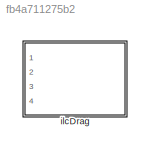
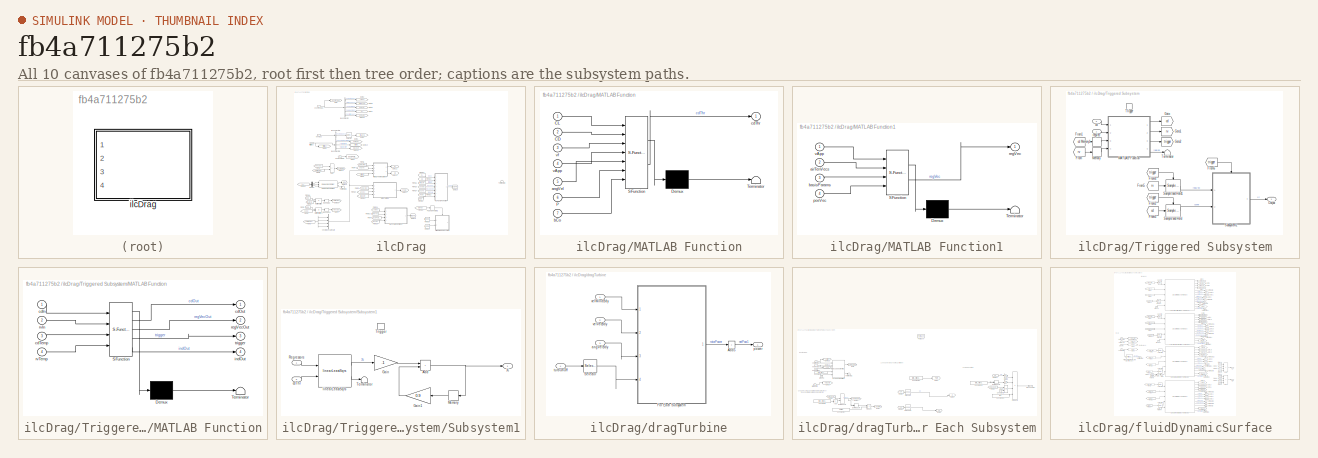
[diagram: thumbnail index - all 10 canvases of the model, root first then tree order]
MODEL slx_fb4a711275b2
KIND library
CONFIG AbsTol = auto
CONFIG EnableMultiTasking = off
CONFIG FixedStep = auto
CONFIG MaxStep = auto
CONFIG MinStep = auto
CONFIG RelTol = 1e-3
CONFIG SampleTimeConstraint = Unconstrained
CONFIG SolverName = VariableStepAuto
CONFIG StartTime = 0.0
CONFIG StopTime = 10.0
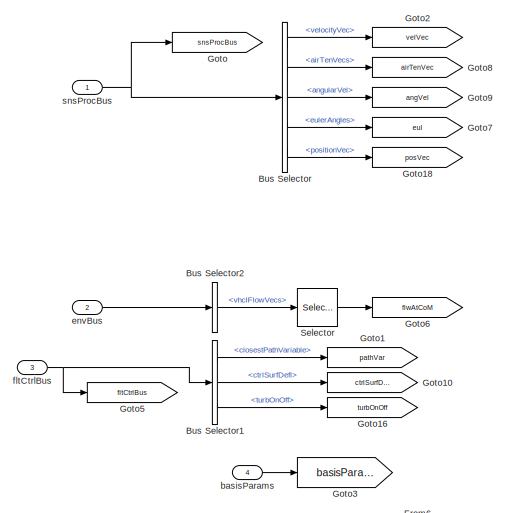
[diagram: ilcDrag - part 1/3, top left region]
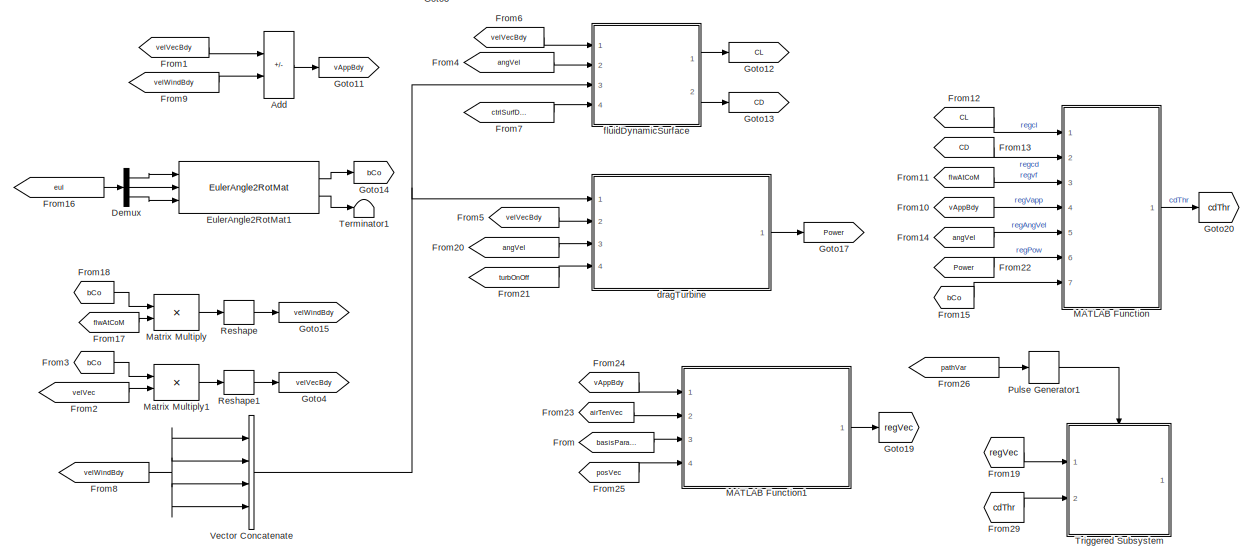
[diagram: ilcDrag - part 2/3, full width, bottom band]
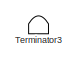
[diagram: ilcDrag - part 3/3, middle right region]
BLOCK [SubSystem] ilcDrag
  MinAlgLoopOccurrences = on
  Ports = [4]
  RequestExecContextInheritance = off
BLOCK [Sum] ilcDrag/Add
  IconShape = rectangular
  Inputs = -+
  Ports = [2, 1]
BLOCK [BusSelector] ilcDrag/Bus Selector
  OutputSignals = velocityVec,airTenVecs,angularVel,eulerAngles,positionVec
  Ports = [1, 5]
BLOCK [BusSelector] ilcDrag/Bus Selector1
  OutputSignals = closestPathVariable,ctrlSurfDefl,turbOnOff
  Ports = [1, 3]
BLOCK [BusSelector] ilcDrag/Bus Selector2
  OutputSignals = vhclFlowVecs
  Ports = [1, 1]
BLOCK [Demux] ilcDrag/Demux
  Outputs = 3
  Ports = [1, 3]
BLOCK [Reference] ilcDrag/EulerAngle2RotMat1  REF=eulAng2RotMat_ul/EulerAngle2RotMat
  Ports = [3, 2]
  SourceBlock = eulAng2RotMat_ul/EulerAngle2RotMat
  SourceType = SubSystem
BLOCK [From] ilcDrag/From
  GotoTag = basisParams
BLOCK [From] ilcDrag/From1
  GotoTag = velVecBdy
BLOCK [From] ilcDrag/From10
  GotoTag = vAppBdy
BLOCK [From] ilcDrag/From11
  GotoTag = flwAtCoM
BLOCK [From] ilcDrag/From12
  GotoTag = CL
BLOCK [From] ilcDrag/From13
  GotoTag = CD
BLOCK [From] ilcDrag/From14
  GotoTag = angVel
BLOCK [From] ilcDrag/From15
  GotoTag = bCo
BLOCK [From] ilcDrag/From16
  GotoTag = eul
BLOCK [From] ilcDrag/From17
  GotoTag = flwAtCoM
BLOCK [From] ilcDrag/From18
  GotoTag = bCo
BLOCK [From] ilcDrag/From19
  GotoTag = regVec
BLOCK [From] ilcDrag/From2
  GotoTag = velVec
BLOCK [From] ilcDrag/From20
  GotoTag = angVel
BLOCK [From] ilcDrag/From21
  GotoTag = turbOnOff
BLOCK [From] ilcDrag/From22
  GotoTag = Power
BLOCK [From] ilcDrag/From23
  GotoTag = airTenVec
BLOCK [From] ilcDrag/From24
  GotoTag = vAppBdy
BLOCK [From] ilcDrag/From25
  GotoTag = posVec
BLOCK [From] ilcDrag/From26
  GotoTag = pathVar
BLOCK [From] ilcDrag/From29
  GotoTag = cdThr
BLOCK [From] ilcDrag/From3
  GotoTag = bCo
BLOCK [From] ilcDrag/From4
  GotoTag = angVel
BLOCK [From] ilcDrag/From5
  GotoTag = velVecBdy
BLOCK [From] ilcDrag/From6
  GotoTag = velVecBdy
BLOCK [From] ilcDrag/From7
  GotoTag = ctrlSurfDefl
BLOCK [From] ilcDrag/From8
  GotoTag = velWindBdy
BLOCK [From] ilcDrag/From9
  GotoTag = velWindBdy
BLOCK [Goto] ilcDrag/Goto
  GotoTag = snsProcBus
BLOCK [Goto] ilcDrag/Goto1
  GotoTag = pathVar
BLOCK [Goto] ilcDrag/Goto10
  GotoTag = ctrlSurfDefl
BLOCK [Goto] ilcDrag/Goto11
  GotoTag = vAppBdy
BLOCK [Goto] ilcDrag/Goto12
  GotoTag = CL
BLOCK [Goto] ilcDrag/Goto13
  GotoTag = CD
BLOCK [Goto] ilcDrag/Goto14
  GotoTag = bCo
BLOCK [Goto] ilcDrag/Goto15
  GotoTag = velWindBdy
BLOCK [Goto] ilcDrag/Goto16
  GotoTag = turbOnOff
BLOCK [Goto] ilcDrag/Goto17
  GotoTag = Power
BLOCK [Goto] ilcDrag/Goto18
  GotoTag = posVec
BLOCK [Goto] ilcDrag/Goto19
  GotoTag = regVec
BLOCK [Goto] ilcDrag/Goto2
  GotoTag = velVec
BLOCK [Goto] ilcDrag/Goto20
  GotoTag = cdThr
BLOCK [Goto] ilcDrag/Goto3
  GotoTag = basisParams
BLOCK [Goto] ilcDrag/Goto4
  GotoTag = velVecBdy
BLOCK [Goto] ilcDrag/Goto5
  GotoTag = fltCtrlBus
BLOCK [Goto] ilcDrag/Goto6
  GotoTag = flwAtCoM
BLOCK [Goto] ilcDrag/Goto7
  GotoTag = eul
BLOCK [Goto] ilcDrag/Goto8
  GotoTag = airTenVec
BLOCK [Goto] ilcDrag/Goto9
  GotoTag = angVel
BLOCK [SubSystem] ilcDrag/MATLAB Function
  ErrorFcn = Stateflow.Translate.translate
  PermitHierarchicalResolution = ExplicitOnly
  Ports = [7, 1]
  RequestExecContextInheritance = off
  SFBlockType = MATLAB Function
  TreatAsAtomicUnit = on
BLOCK [Demux] ilcDrag/MATLAB Function/ Demux 
  Outputs = 1
  Ports = [1, 1]
BLOCK [S-Function] ilcDrag/MATLAB Function/ SFunction 
  EnableBusSupport = off
  FunctionName = sf_sfun
  PortCounts = [7 2]
  Ports = [7, 2]
  SFcnIsStateOwnerBlock = off
  SFunctionDeploymentMode = off
  Tag = Stateflow S-Function 2
BLOCK [Terminator] ilcDrag/MATLAB Function/ Terminator 
BLOCK [Inport] ilcDrag/MATLAB Function/CD
  Port = 2
BLOCK [Inport] ilcDrag/MATLAB Function/CL
BLOCK [Inport] ilcDrag/MATLAB Function/P
  Port = 6
BLOCK [Inport] ilcDrag/MATLAB Function/angVel
  Port = 5
BLOCK [Inport] ilcDrag/MATLAB Function/bCo
  Port = 7
BLOCK [Outport] ilcDrag/MATLAB Function/cdThr
BLOCK [Inport] ilcDrag/MATLAB Function/vApp
  Port = 4
BLOCK [Inport] ilcDrag/MATLAB Function/vf
  Port = 3
BLOCK [SubSystem] ilcDrag/MATLAB Function1
  ErrorFcn = Stateflow.Translate.translate
  PermitHierarchicalResolution = ExplicitOnly
  Ports = [4, 1]
  RequestExecContextInheritance = off
  SFBlockType = MATLAB Function
  TreatAsAtomicUnit = on
BLOCK [Demux] ilcDrag/MATLAB Function1/ Demux 
  Outputs = 1
  Ports = [1, 1]
BLOCK [S-Function] ilcDrag/MATLAB Function1/ SFunction 
  EnableBusSupport = off
  FunctionName = sf_sfun
  PortCounts = [4 2]
  Ports = [4, 2]
  SFcnIsStateOwnerBlock = off
  SFunctionDeploymentMode = off
  Tag = Stateflow S-Function 1
BLOCK [Terminator] ilcDrag/MATLAB Function1/ Terminator 
BLOCK [Inport] ilcDrag/MATLAB Function1/airTenVecs
  Port = 2
BLOCK [Inport] ilcDrag/MATLAB Function1/basisParams
  Port = 3
BLOCK [Inport] ilcDrag/MATLAB Function1/posVec
  Port = 4
BLOCK [Outport] ilcDrag/MATLAB Function1/regVec
BLOCK [Inport] ilcDrag/MATLAB Function1/vApp
BLOCK [Product] ilcDrag/Matrix Multiply
  Multiplication = Matrix(*)
  Ports = [2, 1]
BLOCK [Product] ilcDrag/Matrix Multiply1
  Multiplication = Matrix(*)
  Ports = [2, 1]
BLOCK [DiscretePulseGenerator] ilcDrag/Pulse Generator1
  Period = 0.002
  Ports = [1, 1]
  PulseType = Time based
  PulseWidth = 50
  TimeSource = Use external signal
BLOCK [Reshape] ilcDrag/Reshape
  OutputDimensionality = Column vector (2-D)
  Ports = [1, 1]
BLOCK [Reshape] ilcDrag/Reshape1
  OutputDimensionality = Column vector (2-D)
  Ports = [1, 1]
BLOCK [Selector] ilcDrag/Selector
  IndexOptions = Select all,Index vector (dialog)
  Indices = [1 3],5
  InputPortWidth = 3
  NumberOfDimensions = 2
  OutputSizes = 1,1
  Ports = [1, 1]
BLOCK [Terminator] ilcDrag/Terminator1
BLOCK [Terminator] ilcDrag/Terminator3
BLOCK [SubSystem] ilcDrag/Triggered Subsystem
  Ports = [2, 1, 0, 1]
  RequestExecContextInheritance = off
  TreatAsAtomicUnit = on
BLOCK [From] ilcDrag/Triggered Subsystem/From
  GotoTag = rv
BLOCK [From] ilcDrag/Triggered Subsystem/From1
  GotoTag = cd
BLOCK [From] ilcDrag/Triggered Subsystem/From2
  GotoTag = trigger
BLOCK [From] ilcDrag/Triggered Subsystem/From3
  GotoTag = cd
BLOCK [From] ilcDrag/Triggered Subsystem/From4
  GotoTag = trigger
BLOCK [From] ilcDrag/Triggered Subsystem/From5
  GotoTag = rv
BLOCK [From] ilcDrag/Triggered Subsystem/From6
  GotoTag = trigger
BLOCK [Goto] ilcDrag/Triggered Subsystem/Goto
  GotoTag = cd
BLOCK [Goto] ilcDrag/Triggered Subsystem/Goto1
  GotoTag = rv
BLOCK [Goto] ilcDrag/Triggered Subsystem/Goto2
  GotoTag = trigger
BLOCK [SubSystem] ilcDrag/Triggered Subsystem/MATLAB Function
  ErrorFcn = Stateflow.Translate.translate
  PermitHierarchicalResolution = ExplicitOnly
  Ports = [4, 4]
  RequestExecContextInheritance = off
  SFBlockType = MATLAB Function
  TreatAsAtomicUnit = on
BLOCK [Demux] ilcDrag/Triggered Subsystem/MATLAB Function/ Demux 
  Outputs = 1
  Ports = [1, 1]
BLOCK [S-Function] ilcDrag/Triggered Subsystem/MATLAB Function/ SFunction 
  EnableBusSupport = off
  FunctionName = sf_sfun
  PortCounts = [4 5]
  Ports = [4, 5]
  SFcnIsStateOwnerBlock = off
  SFunctionDeploymentMode = off
  Tag = Stateflow S-Function 3
BLOCK [Terminator] ilcDrag/Triggered Subsystem/MATLAB Function/ Terminator 
BLOCK [Inport] ilcDrag/Triggered Subsystem/MATLAB Function/cdIn
BLOCK [Outport] ilcDrag/Triggered Subsystem/MATLAB Function/cdOut
BLOCK [Inport] ilcDrag/Triggered Subsystem/MATLAB Function/cdTemp
  Port = 3
BLOCK [Outport] ilcDrag/Triggered Subsystem/MATLAB Function/indOut
  Port = 4
BLOCK [Outport] ilcDrag/Triggered Subsystem/MATLAB Function/regVecOut
  Port = 2
BLOCK [Inport] ilcDrag/Triggered Subsystem/MATLAB Function/rvIn
  Port = 2
BLOCK [Inport] ilcDrag/Triggered Subsystem/MATLAB Function/rvTemp
  Port = 4
BLOCK [Outport] ilcDrag/Triggered Subsystem/MATLAB Function/trigger
  Port = 3
BLOCK [Memory] ilcDrag/Triggered Subsystem/Memory
  InheritSampleTime = on
  InitialCondition = zeros(500,10)
BLOCK [Memory] ilcDrag/Triggered Subsystem/Memory1
  InheritSampleTime = on
  InitialCondition = zeros(500,1)
BLOCK [Outport] ilcDrag/Triggered Subsystem/Output
BLOCK [Reference] ilcDrag/Triggered Subsystem/Sample and Hold  REF=dspsigops/Sample
and Hold
  Ports = [1, 1, 0, 1]
  SourceBlock = dspsigops/Sample\nand Hold
  SourceProductBaseCode = DS
  SourceType = Sample and Hold
BLOCK [Reference] ilcDrag/Triggered Subsystem/Sample and Hold1  REF=dspsigops/Sample
and Hold
  Ports = [1, 1, 0, 1]
  SourceBlock = dspsigops/Sample\nand Hold
  SourceProductBaseCode = DS
  SourceType = Sample and Hold
BLOCK [SubSystem] ilcDrag/Triggered Subsystem/Subsystem1
  Ports = [2, 1, 0, 1]
  RequestExecContextInheritance = off
BLOCK [Sum] ilcDrag/Triggered Subsystem/Subsystem1/Add
  IconShape = rectangular
  Ports = [2, 1]
BLOCK [Gain] ilcDrag/Triggered Subsystem/Subsystem1/Gain
  Gain = .1
BLOCK [Gain] ilcDrag/Triggered Subsystem/Subsystem1/Gain1
  Gain = 0.9
BLOCK [Memory] ilcDrag/Triggered Subsystem/Subsystem1/Memory
  InheritSampleTime = on
  InitialCondition = zeros(10,1)
BLOCK [Inport] ilcDrag/Triggered Subsystem/Subsystem1/Regressors
BLOCK [Terminator] ilcDrag/Triggered Subsystem/Subsystem1/Terminator
BLOCK [TriggerPort] ilcDrag/Triggered Subsystem/Subsystem1/Trigger
  PortDimensions = 1
  Ports = []
  StatesWhenEnabling = held
  VariantControl = (inherit)
BLOCK [Outport] ilcDrag/Triggered Subsystem/Subsystem1/Xi
BLOCK [Inport] ilcDrag/Triggered Subsystem/Subsystem1/cdThr
  Port = 2
BLOCK [Reference] ilcDrag/Triggered Subsystem/Subsystem1/linearLeastSqrs  REF=linearLeastSqrs_ul/linearLeastSqrs
  Ports = [2, 2]
  SourceBlock = linearLeastSqrs_ul/linearLeastSqrs
  SourceType = SubSystem
BLOCK [Terminator] ilcDrag/Triggered Subsystem/Terminator
BLOCK [TriggerPort] ilcDrag/Triggered Subsystem/Trigger
  Ports = []
  StatesWhenEnabling = held
  VariantControl = (inherit)
BLOCK [Inport] ilcDrag/Triggered Subsystem/cd
  Port = 2
BLOCK [Inport] ilcDrag/Triggered Subsystem/regVec
BLOCK [Concatenate] ilcDrag/Vector Concatenate
  ConcatenateDimension = 2
  Mode = Multidimensional array
  NumInputs = 4
  Ports = [4, 1]
BLOCK [Inport] ilcDrag/basisParams
  Port = 4
BLOCK [SubSystem] ilcDrag/dragTurbine
  AncestorBlock = dragTurbine/dragTurbine
  Ports = [4, 1]
  RequestExecContextInheritance = off
  TreatAsAtomicUnit = on
BLOCK [Sum] ilcDrag/dragTurbine/Add5
  CollapseDim = 2
  IconShape = rectangular
  Inputs = 1
  Ports = [1, 1]
BLOCK [SubSystem] ilcDrag/dragTurbine/For Each Subsystem
  Ports = [4, 1]
  RequestExecContextInheritance = off
  TreatAsAtomicUnit = on
BLOCK [Abs] ilcDrag/dragTurbine/For Each Subsystem/Abs
  SaturateOnIntegerOverflow = off
BLOCK [Constant] ilcDrag/dragTurbine/For Each Subsystem/Constant10
  Value = rho
BLOCK [Constant] ilcDrag/dragTurbine/For Each Subsystem/Constant11
  Value = turb_struct.diameter
  VectorParams1D = off
BLOCK [Constant] ilcDrag/dragTurbine/For Each Subsystem/Constant14
  Value = 0.5*rho
BLOCK [Constant] ilcDrag/dragTurbine/For Each Subsystem/Constant22
  Value = turb_struct.optTSR
BLOCK [Constant] ilcDrag/dragTurbine/For Each Subsystem/Constant5
  Value = turb_struct.attachPtVec
BLOCK [Constant] ilcDrag/dragTurbine/For Each Subsystem/Constant6
  Value = turb_struct.axisUnitVec
BLOCK [Constant] ilcDrag/dragTurbine/For Each Subsystem/Constant9
  Value = 3
BLOCK [Lookup_n-D] ilcDrag/dragTurbine/For Each Subsystem/Cp look-up
  BreakpointsForDimension1 = turb_struct.RPMref
  InputPortMap = u0
  InternalRulePriority = Speed
  NumberOfTableDimensions = 1
  Ports = [1, 1]
  RndMeth = Simplest
  Table = turb_struct.CpLookup
BLOCK [Lookup_n-D] ilcDrag/dragTurbine/For Each Subsystem/Ct look-up
  BreakpointsForDimension1 = turb_struct.RPMref
  InputPortMap = u0
  InternalRulePriority = Speed
  NumberOfTableDimensions = 1
  Ports = [1, 1]
  RndMeth = Simplest
  Table = turb_struct.CtLookup
BLOCK [DotProduct] ilcDrag/dragTurbine/For Each Subsystem/Dot Product1
  OutDataTypeStr = Inherit: Inherit via internal rule
BLOCK [DotProduct] ilcDrag/dragTurbine/For Each Subsystem/Dot Product2
  OutDataTypeStr = Inherit: Inherit via internal rule
BLOCK [DotProduct] ilcDrag/dragTurbine/For Each Subsystem/Dot Product4
  OutDataTypeStr = Inherit: Inherit via internal rule
BLOCK [ForEach] ilcDrag/dragTurbine/For Each Subsystem/For Each
  DisableCoverage = on
  IterateSubsysMaskParameter = off,on,off
  Ports = []
  SubsysMaskParameterIterationDimension = 1,2,1
  SubsysMaskParameterIterationStepSize = 1,1,1
BLOCK [From] ilcDrag/dragTurbine/For Each Subsystem/From1
  GotoTag = vAppUseable
BLOCK [From] ilcDrag/dragTurbine/For Each Subsystem/From10
  GotoTag = TSR
BLOCK [From] ilcDrag/dragTurbine/For Each Subsystem/From12
  GotoTag = Cp
BLOCK [From] ilcDrag/dragTurbine/For Each Subsystem/From4
  GotoTag = vAppLocal
BLOCK [From] ilcDrag/dragTurbine/For Each Subsystem/From9
  GotoTag = TSR
BLOCK [Gain] ilcDrag/dragTurbine/For Each Subsystem/Gain2
  Gain = 0.5
BLOCK [Gain] ilcDrag/dragTurbine/For Each Subsystem/Gain3
  Gain = pi/4
BLOCK [Goto] ilcDrag/dragTurbine/For Each Subsystem/Goto
  GotoTag = vAppLocal
BLOCK [Goto] ilcDrag/dragTurbine/For Each Subsystem/Goto1
  GotoTag = vAppUseable
BLOCK [Goto] ilcDrag/dragTurbine/For Each Subsystem/Goto11
  Commented = on
  GotoTag = velWind
BLOCK [Goto] ilcDrag/dragTurbine/For Each Subsystem/Goto16
  Commented = on
  GotoTag = velCM
BLOCK [Goto] ilcDrag/dragTurbine/For Each Subsystem/Goto2
  GotoTag = TurbOnOff
BLOCK [Goto] ilcDrag/dragTurbine/For Each Subsystem/Goto3
  GotoTag = Ct
BLOCK [Goto] ilcDrag/dragTurbine/For Each Subsystem/Goto5
  GotoTag = Cp
BLOCK [Goto] ilcDrag/dragTurbine/For Each Subsystem/Goto6
  GotoTag = TSR
BLOCK [Goto] ilcDrag/dragTurbine/For Each Subsystem/Goto7
  GotoTag = dynPres
BLOCK [Ground] ilcDrag/dragTurbine/For Each Subsystem/Ground
BLOCK [Math] ilcDrag/dragTurbine/For Each Subsystem/Pow1
  Operator = pow
  Ports = [2, 1]
  RndMeth = Zero
  SignedPower = on
BLOCK [Product] ilcDrag/dragTurbine/For Each Subsystem/Product
  Ports = [2, 1]
BLOCK [Product] ilcDrag/dragTurbine/For Each Subsystem/Product2
  Inputs = 4
  Ports = [4, 1]
BLOCK [Terminator] ilcDrag/dragTurbine/For Each Subsystem/Terminator1
BLOCK [Inport] ilcDrag/dragTurbine/For Each Subsystem/angVelBdy
  Port = 3
BLOCK [Reference] ilcDrag/dragTurbine/For Each Subsystem/localApparentWind  REF=localApparentWind_ul/localApparentWind
  Ports = [5, 2]
  SourceBlock = localApparentWind_ul/localApparentWind
  SourceType = SubSystem
BLOCK [Outport] ilcDrag/dragTurbine/For Each Subsystem/mechPower
  ConcatenationDimension = 2
  PortDimensions = [1,1]
  VectorParamsAs1DForOutWhenUnconnected = off
BLOCK [Inport] ilcDrag/dragTurbine/For Each Subsystem/turbOnOff
  Port = 4
BLOCK [Inport] ilcDrag/dragTurbine/For Each Subsystem/velVecBdy
  Port = 2
BLOCK [Inport] ilcDrag/dragTurbine/For Each Subsystem/velWindBdy
  Partition = on
  PartitionDimension = 2
  PartitionOffset = 0
  PartitionWidth = 1
BLOCK [Selector] ilcDrag/dragTurbine/Selector
  IndexOptions = Index vector (dialog)
  Indices = 1
  InputPortWidth = 1+vhcl.numTurbines.Value
  OutputSizes = 1
  Ports = [1, 1]
BLOCK [Inport] ilcDrag/dragTurbine/angVelBdy
  Port = 3
BLOCK [Outport] ilcDrag/dragTurbine/power
  PortDimensions = [1,1]
  VectorParamsAs1DForOutWhenUnconnected = off
BLOCK [Inport] ilcDrag/dragTurbine/turbOnOff
  Port = 4
BLOCK [Inport] ilcDrag/dragTurbine/velVecBdy
  Port = 2
BLOCK [Inport] ilcDrag/dragTurbine/velWindBdy
BLOCK [Inport] ilcDrag/envBus
  OutDataTypeStr = Bus: envBus
  Port = 2
BLOCK [Inport] ilcDrag/fltCtrlBus
  OutDataTypeStr = Bus: fltCtrlBus
  Port = 3
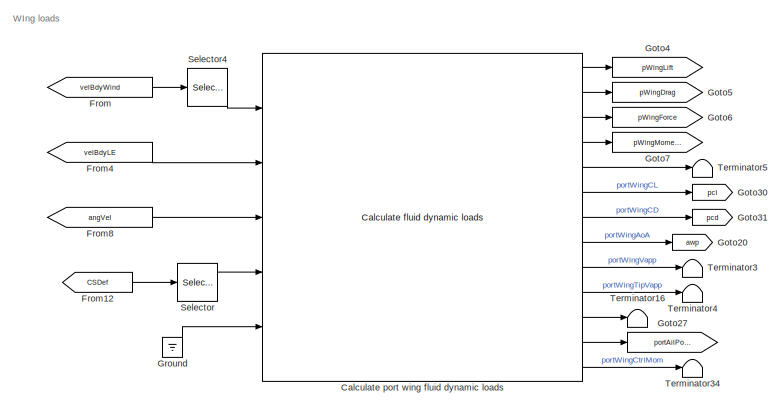
[diagram: ilcDrag/fluidDynamicSurface - part 1/3, top center region]
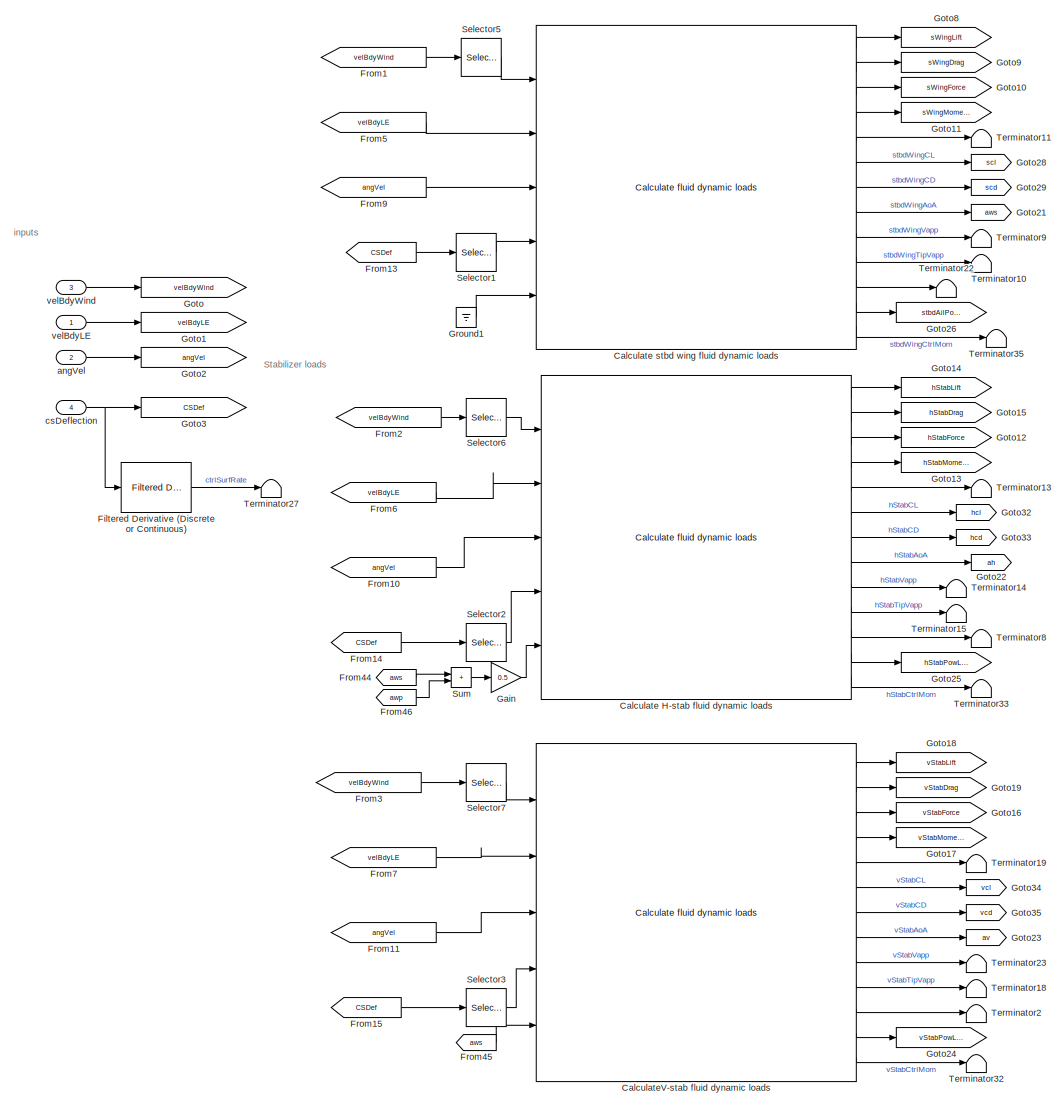
[diagram: ilcDrag/fluidDynamicSurface - part 2/3, full width, middle band]
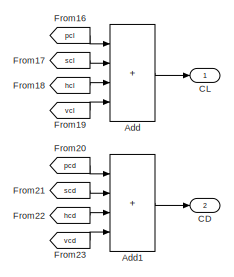
[diagram: ilcDrag/fluidDynamicSurface - part 3/3, bottom right region]
BLOCK [SubSystem] ilcDrag/fluidDynamicSurface
  MinAlgLoopOccurrences = on
  Ports = [4, 2]
  RequestExecContextInheritance = off
BLOCK [Sum] ilcDrag/fluidDynamicSurface/Add
  IconShape = rectangular
  Inputs = ++++
  Ports = [4, 1]
BLOCK [Sum] ilcDrag/fluidDynamicSurface/Add1
  IconShape = rectangular
  Inputs = ++++
  Ports = [4, 1]
BLOCK [Outport] ilcDrag/fluidDynamicSurface/CD
  Port = 2
BLOCK [Outport] ilcDrag/fluidDynamicSurface/CL
BLOCK [Reference] ilcDrag/fluidDynamicSurface/Calculate H-stab fluid dynamic loads  REF=calcFluidDynamicLoads/Calculate fluid dynamic loads
  Ports = [5, 13]
  SourceBlock = calcFluidDynamicLoads/Calculate fluid dynamic loads
BLOCK [Reference] ilcDrag/fluidDynamicSurface/Calculate port wing fluid dynamic loads  REF=calcFluidDynamicLoads/Calculate fluid dynamic loads
  Ports = [5, 13]
  SourceBlock = calcFluidDynamicLoads/Calculate fluid dynamic loads
BLOCK [Reference] ilcDrag/fluidDynamicSurface/Calculate stbd wing fluid dynamic loads  REF=calcFluidDynamicLoads/Calculate fluid dynamic loads
  Ports = [5, 13]
  SourceBlock = calcFluidDynamicLoads/Calculate fluid dynamic loads
BLOCK [Reference] ilcDrag/fluidDynamicSurface/CalculateV-stab fluid dynamic loads  REF=calcFluidDynamicLoads/Calculate fluid dynamic loads
  Ports = [5, 13]
  SourceBlock = calcFluidDynamicLoads/Calculate fluid dynamic loads
BLOCK [Reference] ilcDrag/fluidDynamicSurface/Filtered Derivative (Discrete or Continuous)  REF=eeGeneralControl/Filtered Derivative
(Discrete or Continuous)
  Ports = [1, 1]
  SourceBlock = eeGeneralControl/Filtered Derivative\n(Discrete or Continuous)
  SourceProductBaseCode = PS
  SourceType = Filtered Derivative (Discrete or Continuous)
BLOCK [From] ilcDrag/fluidDynamicSurface/From
  GotoTag = velBdyWind
BLOCK [From] ilcDrag/fluidDynamicSurface/From1
  GotoTag = velBdyWind
BLOCK [From] ilcDrag/fluidDynamicSurface/From10
  GotoTag = angVel
BLOCK [From] ilcDrag/fluidDynamicSurface/From11
  GotoTag = angVel
BLOCK [From] ilcDrag/fluidDynamicSurface/From12
  GotoTag = CSDef
BLOCK [From] ilcDrag/fluidDynamicSurface/From13
  GotoTag = CSDef
BLOCK [From] ilcDrag/fluidDynamicSurface/From14
  GotoTag = CSDef
BLOCK [From] ilcDrag/fluidDynamicSurface/From15
  GotoTag = CSDef
BLOCK [From] ilcDrag/fluidDynamicSurface/From16
  GotoTag = pcl
BLOCK [From] ilcDrag/fluidDynamicSurface/From17
  GotoTag = scl
BLOCK [From] ilcDrag/fluidDynamicSurface/From18
  GotoTag = hcl
BLOCK [From] ilcDrag/fluidDynamicSurface/From19
  GotoTag = vcl
BLOCK [From] ilcDrag/fluidDynamicSurface/From2
  GotoTag = velBdyWind
BLOCK [From] ilcDrag/fluidDynamicSurface/From20
  GotoTag = pcd
BLOCK [From] ilcDrag/fluidDynamicSurface/From21
  GotoTag = scd
BLOCK [From] ilcDrag/fluidDynamicSurface/From22
  GotoTag = hcd
BLOCK [From] ilcDrag/fluidDynamicSurface/From23
  GotoTag = vcd
BLOCK [From] ilcDrag/fluidDynamicSurface/From3
  GotoTag = velBdyWind
BLOCK [From] ilcDrag/fluidDynamicSurface/From4
  GotoTag = velBdyLE
BLOCK [From] ilcDrag/fluidDynamicSurface/From44
  GotoTag = aws
BLOCK [From] ilcDrag/fluidDynamicSurface/From45
  GotoTag = aws
BLOCK [From] ilcDrag/fluidDynamicSurface/From46
  GotoTag = awp
BLOCK [From] ilcDrag/fluidDynamicSurface/From5
  GotoTag = velBdyLE
BLOCK [From] ilcDrag/fluidDynamicSurface/From6
  GotoTag = velBdyLE
BLOCK [From] ilcDrag/fluidDynamicSurface/From7
  GotoTag = velBdyLE
BLOCK [From] ilcDrag/fluidDynamicSurface/From8
  GotoTag = angVel
BLOCK [From] ilcDrag/fluidDynamicSurface/From9
  GotoTag = angVel
BLOCK [Gain] ilcDrag/fluidDynamicSurface/Gain
  Gain = 0.5
BLOCK [Goto] ilcDrag/fluidDynamicSurface/Goto
  GotoTag = velBdyWind
BLOCK [Goto] ilcDrag/fluidDynamicSurface/Goto1
  GotoTag = velBdyLE
BLOCK [Goto] ilcDrag/fluidDynamicSurface/Goto10
  GotoTag = sWingForce
BLOCK [Goto] ilcDrag/fluidDynamicSurface/Goto11
  GotoTag = sWingMoment
BLOCK [Goto] ilcDrag/fluidDynamicSurface/Goto12
  GotoTag = hStabForce
BLOCK [Goto] ilcDrag/fluidDynamicSurface/Goto13
  GotoTag = hStabMoment
BLOCK [Goto] ilcDrag/fluidDynamicSurface/Goto14
  GotoTag = hStabLift
BLOCK [Goto] ilcDrag/fluidDynamicSurface/Goto15
  GotoTag = hStabDrag
BLOCK [Goto] ilcDrag/fluidDynamicSurface/Goto16
  GotoTag = vStabForce
BLOCK [Goto] ilcDrag/fluidDynamicSurface/Goto17
  GotoTag = vStabMoment
BLOCK [Goto] ilcDrag/fluidDynamicSurface/Goto18
  GotoTag = vStabLift
BLOCK [Goto] ilcDrag/fluidDynamicSurface/Goto19
  GotoTag = vStabDrag
BLOCK [Goto] ilcDrag/fluidDynamicSurface/Goto2
  GotoTag = angVel
BLOCK [Goto] ilcDrag/fluidDynamicSurface/Goto20
  GotoTag = awp
BLOCK [Goto] ilcDrag/fluidDynamicSurface/Goto21
  GotoTag = aws
BLOCK [Goto] ilcDrag/fluidDynamicSurface/Goto22
  GotoTag = ah
BLOCK [Goto] ilcDrag/fluidDynamicSurface/Goto23
  GotoTag = av
BLOCK [Goto] ilcDrag/fluidDynamicSurface/Goto24
  GotoTag = vStabPowLoss
BLOCK [Goto] ilcDrag/fluidDynamicSurface/Goto25
  GotoTag = hStabPowLoss
BLOCK [Goto] ilcDrag/fluidDynamicSurface/Goto26
  GotoTag = stbdAilPowLoss
BLOCK [Goto] ilcDrag/fluidDynamicSurface/Goto27
  GotoTag = portAilPowLoss
BLOCK [Goto] ilcDrag/fluidDynamicSurface/Goto28
  GotoTag = scl
BLOCK [Goto] ilcDrag/fluidDynamicSurface/Goto29
  GotoTag = scd
BLOCK [Goto] ilcDrag/fluidDynamicSurface/Goto3
  GotoTag = CSDef
BLOCK [Goto] ilcDrag/fluidDynamicSurface/Goto30
  GotoTag = pcl
BLOCK [Goto] ilcDrag/fluidDynamicSurface/Goto31
  GotoTag = pcd
BLOCK [Goto] ilcDrag/fluidDynamicSurface/Goto32
  GotoTag = hcl
BLOCK [Goto] ilcDrag/fluidDynamicSurface/Goto33
  GotoTag = hcd
BLOCK [Goto] ilcDrag/fluidDynamicSurface/Goto34
  GotoTag = vcl
BLOCK [Goto] ilcDrag/fluidDynamicSurface/Goto35
  GotoTag = vcd
BLOCK [Goto] ilcDrag/fluidDynamicSurface/Goto4
  GotoTag = pWingLift
BLOCK [Goto] ilcDrag/fluidDynamicSurface/Goto5
  GotoTag = pWingDrag
BLOCK [Goto] ilcDrag/fluidDynamicSurface/Goto6
  GotoTag = pWingForce
BLOCK [Goto] ilcDrag/fluidDynamicSurface/Goto7
  GotoTag = pWingMoment
BLOCK [Goto] ilcDrag/fluidDynamicSurface/Goto8
  GotoTag = sWingLift
BLOCK [Goto] ilcDrag/fluidDynamicSurface/Goto9
  GotoTag = sWingDrag
BLOCK [Ground] ilcDrag/fluidDynamicSurface/Ground
BLOCK [Ground] ilcDrag/fluidDynamicSurface/Ground1
BLOCK [Selector] ilcDrag/fluidDynamicSurface/Selector
  IndexOptions = Index vector (dialog)
  Indices = 1
  InputPortWidth = 4
  OutputSizes = 1
  Ports = [1, 1]
BLOCK [Selector] ilcDrag/fluidDynamicSurface/Selector1
  IndexOptions = Index vector (dialog)
  Indices = 2
  InputPortWidth = 4
  OutputSizes = 1
  Ports = [1, 1]
BLOCK [Selector] ilcDrag/fluidDynamicSurface/Selector2
  IndexOptions = Index vector (dialog)
  Indices = 3
  InputPortWidth = 4
  OutputSizes = 1
  Ports = [1, 1]
BLOCK [Selector] ilcDrag/fluidDynamicSurface/Selector3
  IndexOptions = Index vector (dialog)
  Indices = 4
  InputPortWidth = 4
  OutputSizes = 1
  Ports = [1, 1]
BLOCK [Selector] ilcDrag/fluidDynamicSurface/Selector4
  IndexOptions = Select all,Index vector (dialog)
  Indices = 1,1
  InputPortWidth = 4
  NumberOfDimensions = 2
  OutputSizes = 1,1
  Ports = [1, 1]
BLOCK [Selector] ilcDrag/fluidDynamicSurface/Selector5
  IndexOptions = Select all,Index vector (dialog)
  Indices = 1,2
  InputPortWidth = 4
  NumberOfDimensions = 2
  OutputSizes = 1,1
  Ports = [1, 1]
BLOCK [Selector] ilcDrag/fluidDynamicSurface/Selector6
  IndexOptions = Select all,Index vector (dialog)
  Indices = 1,3
  InputPortWidth = 4
  NumberOfDimensions = 2
  OutputSizes = 1,1
  Ports = [1, 1]
BLOCK [Selector] ilcDrag/fluidDynamicSurface/Selector7
  IndexOptions = Select all,Index vector (dialog)
  Indices = 1,4
  InputPortWidth = 4
  NumberOfDimensions = 2
  OutputSizes = 1,1
  Ports = [1, 1]
BLOCK [Sum] ilcDrag/fluidDynamicSurface/Sum
  IconShape = rectangular
  Inputs = |++
  Ports = [2, 1]
BLOCK [Terminator] ilcDrag/fluidDynamicSurface/Terminator10
BLOCK [Terminator] ilcDrag/fluidDynamicSurface/Terminator11
BLOCK [Terminator] ilcDrag/fluidDynamicSurface/Terminator13
BLOCK [Terminator] ilcDrag/fluidDynamicSurface/Terminator14
BLOCK [Terminator] ilcDrag/fluidDynamicSurface/Terminator15
BLOCK [Terminator] ilcDrag/fluidDynamicSurface/Terminator16
BLOCK [Terminator] ilcDrag/fluidDynamicSurface/Terminator18
BLOCK [Terminator] ilcDrag/fluidDynamicSurface/Terminator19
BLOCK [Terminator] ilcDrag/fluidDynamicSurface/Terminator2
BLOCK [Terminator] ilcDrag/fluidDynamicSurface/Terminator22
BLOCK [Terminator] ilcDrag/fluidDynamicSurface/Terminator23
BLOCK [Terminator] ilcDrag/fluidDynamicSurface/Terminator27
BLOCK [Terminator] ilcDrag/fluidDynamicSurface/Terminator3
BLOCK [Terminator] ilcDrag/fluidDynamicSurface/Terminator32
BLOCK [Terminator] ilcDrag/fluidDynamicSurface/Terminator33
BLOCK [Terminator] ilcDrag/fluidDynamicSurface/Terminator34
BLOCK [Terminator] ilcDrag/fluidDynamicSurface/Terminator35
BLOCK [Terminator] ilcDrag/fluidDynamicSurface/Terminator4
BLOCK [Terminator] ilcDrag/fluidDynamicSurface/Terminator5
BLOCK [Terminator] ilcDrag/fluidDynamicSurface/Terminator8
BLOCK [Terminator] ilcDrag/fluidDynamicSurface/Terminator9
BLOCK [Inport] ilcDrag/fluidDynamicSurface/angVel
  Port = 2
BLOCK [Inport] ilcDrag/fluidDynamicSurface/csDeflection
  Port = 4
BLOCK [Inport] ilcDrag/fluidDynamicSurface/velBdyLE
BLOCK [Inport] ilcDrag/fluidDynamicSurface/velBdyWind
  Port = 3
BLOCK [Inport] ilcDrag/snsProcBus
  OutDataTypeStr = Bus: sensorsProcessingBus
ANNOTATION ilcDrag/dragTurbine/For Each Subsystem: Input Parsing
ANNOTATION ilcDrag/dragTurbine/For Each Subsystem: Lookup Hydrodynamic Coefficient
ANNOTATION ilcDrag/dragTurbine/For Each Subsystem: Power Calculation
ANNOTATION ilcDrag/dragTurbine/For Each Subsystem: Useable component of wind is in the direction of the axis of rotation, or turbine drag direction
ANNOTATION ilcDrag/fluidDynamicSurface: Stabilizer loads
ANNOTATION ilcDrag/fluidDynamicSurface: WIng loads
ANNOTATION ilcDrag/fluidDynamicSurface: inputs
LINE ilcDrag/Add:1 -> ilcDrag/Goto11:1
LINE ilcDrag/Bus Selector1:1 -> ilcDrag/Goto1:1
LINE ilcDrag/Bus Selector1:2 -> ilcDrag/Goto10:1
LINE ilcDrag/Bus Selector1:3 -> ilcDrag/Goto16:1
LINE ilcDrag/Bus Selector2:1 -> ilcDrag/Selector:1
LINE ilcDrag/Bus Selector:1 -> ilcDrag/Goto2:1
LINE ilcDrag/Bus Selector:2 -> ilcDrag/Goto8:1
LINE ilcDrag/Bus Selector:3 -> ilcDrag/Goto9:1
LINE ilcDrag/Bus Selector:4 -> ilcDrag/Goto7:1
LINE ilcDrag/Bus Selector:5 -> ilcDrag/Goto18:1
LINE ilcDrag/Demux:1 -> ilcDrag/EulerAngle2RotMat1:1
LINE ilcDrag/Demux:2 -> ilcDrag/EulerAngle2RotMat1:2
LINE ilcDrag/Demux:3 -> ilcDrag/EulerAngle2RotMat1:3
LINE ilcDrag/EulerAngle2RotMat1:1 -> ilcDrag/Goto14:1
LINE ilcDrag/EulerAngle2RotMat1:2 -> ilcDrag/Terminator1:1
LINE ilcDrag/From10:1 -> ilcDrag/MATLAB Function:4
LINE ilcDrag/From11:1 -> ilcDrag/MATLAB Function:3
LINE ilcDrag/From12:1 -> ilcDrag/MATLAB Function:1
LINE ilcDrag/From13:1 -> ilcDrag/MATLAB Function:2
LINE ilcDrag/From14:1 -> ilcDrag/MATLAB Function:5
LINE ilcDrag/From15:1 -> ilcDrag/MATLAB Function:7
LINE ilcDrag/From16:1 -> ilcDrag/Demux:1
LINE ilcDrag/From17:1 -> ilcDrag/Matrix Multiply:2
LINE ilcDrag/From18:1 -> ilcDrag/Matrix Multiply:1
LINE ilcDrag/From19:1 -> ilcDrag/Triggered Subsystem:1
LINE ilcDrag/From1:1 -> ilcDrag/Add:1
LINE ilcDrag/From20:1 -> ilcDrag/dragTurbine:3
LINE ilcDrag/From21:1 -> ilcDrag/dragTurbine:4
LINE ilcDrag/From22:1 -> ilcDrag/MATLAB Function:6
LINE ilcDrag/From23:1 -> ilcDrag/MATLAB Function1:2
LINE ilcDrag/From24:1 -> ilcDrag/MATLAB Function1:1
LINE ilcDrag/From25:1 -> ilcDrag/MATLAB Function1:4
LINE ilcDrag/From26:1 -> ilcDrag/Pulse Generator1:1
LINE ilcDrag/From29:1 -> ilcDrag/Triggered Subsystem:2
LINE ilcDrag/From2:1 -> ilcDrag/Matrix Multiply1:2
LINE ilcDrag/From3:1 -> ilcDrag/Matrix Multiply1:1
LINE ilcDrag/From4:1 -> ilcDrag/fluidDynamicSurface:2
LINE ilcDrag/From5:1 -> ilcDrag/dragTurbine:2
LINE ilcDrag/From6:1 -> ilcDrag/fluidDynamicSurface:1
LINE ilcDrag/From7:1 -> ilcDrag/fluidDynamicSurface:4
NET ilcDrag/From8:1 -> ilcDrag/Vector Concatenate:1, ilcDrag/Vector Concatenate:2, ilcDrag/Vector Concatenate:3, ilcDrag/Vector Concatenate:4
LINE ilcDrag/From9:1 -> ilcDrag/Add:2
LINE ilcDrag/From:1 -> ilcDrag/MATLAB Function1:3
LINE ilcDrag/MATLAB Function1:1 -> ilcDrag/Goto19:1
LINE ilcDrag/MATLAB Function:1 -> ilcDrag/Goto20:1
LINE ilcDrag/Matrix Multiply1:1 -> ilcDrag/Reshape1:1
LINE ilcDrag/Matrix Multiply:1 -> ilcDrag/Reshape:1
LINE ilcDrag/Pulse Generator1:1 -> ilcDrag/Triggered Subsystem:trigger
LINE ilcDrag/Reshape1:1 -> ilcDrag/Goto4:1
LINE ilcDrag/Reshape:1 -> ilcDrag/Goto15:1
LINE ilcDrag/Selector:1 -> ilcDrag/Goto6:1
LINE ilcDrag/Triggered Subsystem/From1:1 -> ilcDrag/Triggered Subsystem/Memory1:1
LINE ilcDrag/Triggered Subsystem/From2:1 -> ilcDrag/Triggered Subsystem/Sample and Hold:trigger
LINE ilcDrag/Triggered Subsystem/From3:1 -> ilcDrag/Triggered Subsystem/Sample and Hold:1
LINE ilcDrag/Triggered Subsystem/From4:1 -> ilcDrag/Triggered Subsystem/Sample and Hold1:trigger
LINE ilcDrag/Triggered Subsystem/From5:1 -> ilcDrag/Triggered Subsystem/Sample and Hold1:1
LINE ilcDrag/Triggered Subsystem/From6:1 -> ilcDrag/Triggered Subsystem/Subsystem1:trigger
LINE ilcDrag/Triggered Subsystem/From:1 -> ilcDrag/Triggered Subsystem/Memory:1
LINE ilcDrag/Triggered Subsystem/MATLAB Function:1 -> ilcDrag/Triggered Subsystem/Goto:1
LINE ilcDrag/Triggered Subsystem/MATLAB Function:2 -> ilcDrag/Triggered Subsystem/Goto1:1
LINE ilcDrag/Triggered Subsystem/MATLAB Function:3 -> ilcDrag/Triggered Subsystem/Goto2:1
LINE ilcDrag/Triggered Subsystem/MATLAB Function:4 -> ilcDrag/Triggered Subsystem/Terminator:1
LINE ilcDrag/Triggered Subsystem/Memory1:1 -> ilcDrag/Triggered Subsystem/MATLAB Function:3
LINE ilcDrag/Triggered Subsystem/Memory:1 -> ilcDrag/Triggered Subsystem/MATLAB Function:4
LINE ilcDrag/Triggered Subsystem/Sample and Hold1:1 -> ilcDrag/Triggered Subsystem/Subsystem1:1
LINE ilcDrag/Triggered Subsystem/Sample and Hold:1 -> ilcDrag/Triggered Subsystem/Subsystem1:2
NET ilcDrag/Triggered Subsystem/Subsystem1/Add:1 -> ilcDrag/Triggered Subsystem/Subsystem1/Memory:1, ilcDrag/Triggered Subsystem/Subsystem1/Xi:1
LINE ilcDrag/Triggered Subsystem/Subsystem1/Gain1:1 -> ilcDrag/Triggered Subsystem/Subsystem1/Add:2
LINE ilcDrag/Triggered Subsystem/Subsystem1/Gain:1 -> ilcDrag/Triggered Subsystem/Subsystem1/Add:1
LINE ilcDrag/Triggered Subsystem/Subsystem1/Memory:1 -> ilcDrag/Triggered Subsystem/Subsystem1/Gain1:1
LINE ilcDrag/Triggered Subsystem/Subsystem1/Regressors:1 -> ilcDrag/Triggered Subsystem/Subsystem1/linearLeastSqrs:1
LINE ilcDrag/Triggered Subsystem/Subsystem1/cdThr:1 -> ilcDrag/Triggered Subsystem/Subsystem1/linearLeastSqrs:2
LINE ilcDrag/Triggered Subsystem/Subsystem1/linearLeastSqrs:1 -> ilcDrag/Triggered Subsystem/Subsystem1/Gain:1
LINE ilcDrag/Triggered Subsystem/Subsystem1/linearLeastSqrs:2 -> ilcDrag/Triggered Subsystem/Subsystem1/Terminator:1
LINE ilcDrag/Triggered Subsystem/Subsystem1:1 -> ilcDrag/Triggered Subsystem/Output:1
LINE ilcDrag/Triggered Subsystem/cd:1 -> ilcDrag/Triggered Subsystem/MATLAB Function:1
LINE ilcDrag/Triggered Subsystem/regVec:1 -> ilcDrag/Triggered Subsystem/MATLAB Function:2
NET ilcDrag/Vector Concatenate:1 -> ilcDrag/dragTurbine:1, ilcDrag/fluidDynamicSurface:3
LINE ilcDrag/basisParams:1 -> ilcDrag/Goto3:1
LINE ilcDrag/dragTurbine:1 -> ilcDrag/Goto17:1
LINE ilcDrag/envBus:1 -> ilcDrag/Bus Selector2:1
NET ilcDrag/fltCtrlBus:1 -> ilcDrag/Bus Selector1:1, ilcDrag/Goto5:1
LINE ilcDrag/fluidDynamicSurface/Add1:1 -> ilcDrag/fluidDynamicSurface/CD:1
LINE ilcDrag/fluidDynamicSurface/Add:1 -> ilcDrag/fluidDynamicSurface/CL:1
LINE ilcDrag/fluidDynamicSurface/Calculate H-stab fluid dynamic loads:1 -> ilcDrag/fluidDynamicSurface/Goto14:1
LINE ilcDrag/fluidDynamicSurface/Calculate H-stab fluid dynamic loads:10 -> ilcDrag/fluidDynamicSurface/Terminator15:1
LINE ilcDrag/fluidDynamicSurface/Calculate H-stab fluid dynamic loads:11 -> ilcDrag/fluidDynamicSurface/Terminator8:1
LINE ilcDrag/fluidDynamicSurface/Calculate H-stab fluid dynamic loads:12 -> ilcDrag/fluidDynamicSurface/Goto25:1
LINE ilcDrag/fluidDynamicSurface/Calculate H-stab fluid dynamic loads:13 -> ilcDrag/fluidDynamicSurface/Terminator33:1
LINE ilcDrag/fluidDynamicSurface/Calculate H-stab fluid dynamic loads:2 -> ilcDrag/fluidDynamicSurface/Goto15:1
LINE ilcDrag/fluidDynamicSurface/Calculate H-stab fluid dynamic loads:3 -> ilcDrag/fluidDynamicSurface/Goto12:1
LINE ilcDrag/fluidDynamicSurface/Calculate H-stab fluid dynamic loads:4 -> ilcDrag/fluidDynamicSurface/Goto13:1
LINE ilcDrag/fluidDynamicSurface/Calculate H-stab fluid dynamic loads:5 -> ilcDrag/fluidDynamicSurface/Terminator13:1
LINE ilcDrag/fluidDynamicSurface/Calculate H-stab fluid dynamic loads:6 -> ilcDrag/fluidDynamicSurface/Goto32:1
LINE ilcDrag/fluidDynamicSurface/Calculate H-stab fluid dynamic loads:7 -> ilcDrag/fluidDynamicSurface/Goto33:1
LINE ilcDrag/fluidDynamicSurface/Calculate H-stab fluid dynamic loads:8 -> ilcDrag/fluidDynamicSurface/Goto22:1
LINE ilcDrag/fluidDynamicSurface/Calculate H-stab fluid dynamic loads:9 -> ilcDrag/fluidDynamicSurface/Terminator14:1
LINE ilcDrag/fluidDynamicSurface/Calculate port wing fluid dynamic loads:1 -> ilcDrag/fluidDynamicSurface/Goto4:1
LINE ilcDrag/fluidDynamicSurface/Calculate port wing fluid dynamic loads:10 -> ilcDrag/fluidDynamicSurface/Terminator4:1
LINE ilcDrag/fluidDynamicSurface/Calculate port wing fluid dynamic loads:11 -> ilcDrag/fluidDynamicSurface/Terminator16:1
LINE ilcDrag/fluidDynamicSurface/Calculate port wing fluid dynamic loads:12 -> ilcDrag/fluidDynamicSurface/Goto27:1
LINE ilcDrag/fluidDynamicSurface/Calculate port wing fluid dynamic loads:13 -> ilcDrag/fluidDynamicSurface/Terminator34:1
LINE ilcDrag/fluidDynamicSurface/Calculate port wing fluid dynamic loads:2 -> ilcDrag/fluidDynamicSurface/Goto5:1
LINE ilcDrag/fluidDynamicSurface/Calculate port wing fluid dynamic loads:3 -> ilcDrag/fluidDynamicSurface/Goto6:1
LINE ilcDrag/fluidDynamicSurface/Calculate port wing fluid dynamic loads:4 -> ilcDrag/fluidDynamicSurface/Goto7:1
LINE ilcDrag/fluidDynamicSurface/Calculate port wing fluid dynamic loads:5 -> ilcDrag/fluidDynamicSurface/Terminator5:1
LINE ilcDrag/fluidDynamicSurface/Calculate port wing fluid dynamic loads:6 -> ilcDrag/fluidDynamicSurface/Goto30:1
LINE ilcDrag/fluidDynamicSurface/Calculate port wing fluid dynamic loads:7 -> ilcDrag/fluidDynamicSurface/Goto31:1
LINE ilcDrag/fluidDynamicSurface/Calculate port wing fluid dynamic loads:8 -> ilcDrag/fluidDynamicSurface/Goto20:1
LINE ilcDrag/fluidDynamicSurface/Calculate port wing fluid dynamic loads:9 -> ilcDrag/fluidDynamicSurface/Terminator3:1
LINE ilcDrag/fluidDynamicSurface/Calculate stbd wing fluid dynamic loads:1 -> ilcDrag/fluidDynamicSurface/Goto8:1
LINE ilcDrag/fluidDynamicSurface/Calculate stbd wing fluid dynamic loads:10 -> ilcDrag/fluidDynamicSurface/Terminator10:1
LINE ilcDrag/fluidDynamicSurface/Calculate stbd wing fluid dynamic loads:11 -> ilcDrag/fluidDynamicSurface/Terminator22:1
LINE ilcDrag/fluidDynamicSurface/Calculate stbd wing fluid dynamic loads:12 -> ilcDrag/fluidDynamicSurface/Goto26:1
LINE ilcDrag/fluidDynamicSurface/Calculate stbd wing fluid dynamic loads:13 -> ilcDrag/fluidDynamicSurface/Terminator35:1
LINE ilcDrag/fluidDynamicSurface/Calculate stbd wing fluid dynamic loads:2 -> ilcDrag/fluidDynamicSurface/Goto9:1
LINE ilcDrag/fluidDynamicSurface/Calculate stbd wing fluid dynamic loads:3 -> ilcDrag/fluidDynamicSurface/Goto10:1
LINE ilcDrag/fluidDynamicSurface/Calculate stbd wing fluid dynamic loads:4 -> ilcDrag/fluidDynamicSurface/Goto11:1
LINE ilcDrag/fluidDynamicSurface/Calculate stbd wing fluid dynamic loads:5 -> ilcDrag/fluidDynamicSurface/Terminator11:1
LINE ilcDrag/fluidDynamicSurface/Calculate stbd wing fluid dynamic loads:6 -> ilcDrag/fluidDynamicSurface/Goto28:1
LINE ilcDrag/fluidDynamicSurface/Calculate stbd wing fluid dynamic loads:7 -> ilcDrag/fluidDynamicSurface/Goto29:1
LINE ilcDrag/fluidDynamicSurface/Calculate stbd wing fluid dynamic loads:8 -> ilcDrag/fluidDynamicSurface/Goto21:1
LINE ilcDrag/fluidDynamicSurface/Calculate stbd wing fluid dynamic loads:9 -> ilcDrag/fluidDynamicSurface/Terminator9:1
LINE ilcDrag/fluidDynamicSurface/CalculateV-stab fluid dynamic loads:1 -> ilcDrag/fluidDynamicSurface/Goto18:1
LINE ilcDrag/fluidDynamicSurface/CalculateV-stab fluid dynamic loads:10 -> ilcDrag/fluidDynamicSurface/Terminator18:1
LINE ilcDrag/fluidDynamicSurface/CalculateV-stab fluid dynamic loads:11 -> ilcDrag/fluidDynamicSurface/Terminator2:1
LINE ilcDrag/fluidDynamicSurface/CalculateV-stab fluid dynamic loads:12 -> ilcDrag/fluidDynamicSurface/Goto24:1
LINE ilcDrag/fluidDynamicSurface/CalculateV-stab fluid dynamic loads:13 -> ilcDrag/fluidDynamicSurface/Terminator32:1
LINE ilcDrag/fluidDynamicSurface/CalculateV-stab fluid dynamic loads:2 -> ilcDrag/fluidDynamicSurface/Goto19:1
LINE ilcDrag/fluidDynamicSurface/CalculateV-stab fluid dynamic loads:3 -> ilcDrag/fluidDynamicSurface/Goto16:1
LINE ilcDrag/fluidDynamicSurface/CalculateV-stab fluid dynamic loads:4 -> ilcDrag/fluidDynamicSurface/Goto17:1
LINE ilcDrag/fluidDynamicSurface/CalculateV-stab fluid dynamic loads:5 -> ilcDrag/fluidDynamicSurface/Terminator19:1
LINE ilcDrag/fluidDynamicSurface/CalculateV-stab fluid dynamic loads:6 -> ilcDrag/fluidDynamicSurface/Goto34:1
LINE ilcDrag/fluidDynamicSurface/CalculateV-stab fluid dynamic loads:7 -> ilcDrag/fluidDynamicSurface/Goto35:1
LINE ilcDrag/fluidDynamicSurface/CalculateV-stab fluid dynamic loads:8 -> ilcDrag/fluidDynamicSurface/Goto23:1
LINE ilcDrag/fluidDynamicSurface/CalculateV-stab fluid dynamic loads:9 -> ilcDrag/fluidDynamicSurface/Terminator23:1
LINE ilcDrag/fluidDynamicSurface/Filtered Derivative (Discrete or Continuous):1 -> ilcDrag/fluidDynamicSurface/Terminator27:1
LINE ilcDrag/fluidDynamicSurface/From10:1 -> ilcDrag/fluidDynamicSurface/Calculate H-stab fluid dynamic loads:3
LINE ilcDrag/fluidDynamicSurface/From11:1 -> ilcDrag/fluidDynamicSurface/CalculateV-stab fluid dynamic loads:3
LINE ilcDrag/fluidDynamicSurface/From12:1 -> ilcDrag/fluidDynamicSurface/Selector:1
LINE ilcDrag/fluidDynamicSurface/From13:1 -> ilcDrag/fluidDynamicSurface/Selector1:1
LINE ilcDrag/fluidDynamicSurface/From14:1 -> ilcDrag/fluidDynamicSurface/Selector2:1
LINE ilcDrag/fluidDynamicSurface/From15:1 -> ilcDrag/fluidDynamicSurface/Selector3:1
LINE ilcDrag/fluidDynamicSurface/From16:1 -> ilcDrag/fluidDynamicSurface/Add:1
LINE ilcDrag/fluidDynamicSurface/From17:1 -> ilcDrag/fluidDynamicSurface/Add:2
LINE ilcDrag/fluidDynamicSurface/From18:1 -> ilcDrag/fluidDynamicSurface/Add:3
LINE ilcDrag/fluidDynamicSurface/From19:1 -> ilcDrag/fluidDynamicSurface/Add:4
LINE ilcDrag/fluidDynamicSurface/From1:1 -> ilcDrag/fluidDynamicSurface/Selector5:1
LINE ilcDrag/fluidDynamicSurface/From20:1 -> ilcDrag/fluidDynamicSurface/Add1:1
LINE ilcDrag/fluidDynamicSurface/From21:1 -> ilcDrag/fluidDynamicSurface/Add1:2
LINE ilcDrag/fluidDynamicSurface/From22:1 -> ilcDrag/fluidDynamicSurface/Add1:3
LINE ilcDrag/fluidDynamicSurface/From23:1 -> ilcDrag/fluidDynamicSurface/Add1:4
LINE ilcDrag/fluidDynamicSurface/From2:1 -> ilcDrag/fluidDynamicSurface/Selector6:1
LINE ilcDrag/fluidDynamicSurface/From3:1 -> ilcDrag/fluidDynamicSurface/Selector7:1
LINE ilcDrag/fluidDynamicSurface/From44:1 -> ilcDrag/fluidDynamicSurface/Sum:1
LINE ilcDrag/fluidDynamicSurface/From45:1 -> ilcDrag/fluidDynamicSurface/CalculateV-stab fluid dynamic loads:5
LINE ilcDrag/fluidDynamicSurface/From46:1 -> ilcDrag/fluidDynamicSurface/Sum:2
LINE ilcDrag/fluidDynamicSurface/From4:1 -> ilcDrag/fluidDynamicSurface/Calculate port wing fluid dynamic loads:2
LINE ilcDrag/fluidDynamicSurface/From5:1 -> ilcDrag/fluidDynamicSurface/Calculate stbd wing fluid dynamic loads:2
LINE ilcDrag/fluidDynamicSurface/From6:1 -> ilcDrag/fluidDynamicSurface/Calculate H-stab fluid dynamic loads:2
LINE ilcDrag/fluidDynamicSurface/From7:1 -> ilcDrag/fluidDynamicSurface/CalculateV-stab fluid dynamic loads:2
LINE ilcDrag/fluidDynamicSurface/From8:1 -> ilcDrag/fluidDynamicSurface/Calculate port wing fluid dynamic loads:3
LINE ilcDrag/fluidDynamicSurface/From9:1 -> ilcDrag/fluidDynamicSurface/Calculate stbd wing fluid dynamic loads:3
LINE ilcDrag/fluidDynamicSurface/From:1 -> ilcDrag/fluidDynamicSurface/Selector4:1
LINE ilcDrag/fluidDynamicSurface/Gain:1 -> ilcDrag/fluidDynamicSurface/Calculate H-stab fluid dynamic loads:5
LINE ilcDrag/fluidDynamicSurface/Ground1:1 -> ilcDrag/fluidDynamicSurface/Calculate stbd wing fluid dynamic loads:5
LINE ilcDrag/fluidDynamicSurface/Ground:1 -> ilcDrag/fluidDynamicSurface/Calculate port wing fluid dynamic loads:5
LINE ilcDrag/fluidDynamicSurface/Selector1:1 -> ilcDrag/fluidDynamicSurface/Calculate stbd wing fluid dynamic loads:4
LINE ilcDrag/fluidDynamicSurface/Selector2:1 -> ilcDrag/fluidDynamicSurface/Calculate H-stab fluid dynamic loads:4
LINE ilcDrag/fluidDynamicSurface/Selector3:1 -> ilcDrag/fluidDynamicSurface/CalculateV-stab fluid dynamic loads:4
LINE ilcDrag/fluidDynamicSurface/Selector4:1 -> ilcDrag/fluidDynamicSurface/Calculate port wing fluid dynamic loads:1
LINE ilcDrag/fluidDynamicSurface/Selector5:1 -> ilcDrag/fluidDynamicSurface/Calculate stbd wing fluid dynamic loads:1
LINE ilcDrag/fluidDynamicSurface/Selector6:1 -> ilcDrag/fluidDynamicSurface/Calculate H-stab fluid dynamic loads:1
LINE ilcDrag/fluidDynamicSurface/Selector7:1 -> ilcDrag/fluidDynamicSurface/CalculateV-stab fluid dynamic loads:1
LINE ilcDrag/fluidDynamicSurface/Selector:1 -> ilcDrag/fluidDynamicSurface/Calculate port wing fluid dynamic loads:4
LINE ilcDrag/fluidDynamicSurface/Sum:1 -> ilcDrag/fluidDynamicSurface/Gain:1
LINE ilcDrag/fluidDynamicSurface/angVel:1 -> ilcDrag/fluidDynamicSurface/Goto2:1
NET ilcDrag/fluidDynamicSurface/csDeflection:1 -> ilcDrag/fluidDynamicSurface/Filtered Derivative (Discrete or Continuous):1, ilcDrag/fluidDynamicSurface/Goto3:1
LINE ilcDrag/fluidDynamicSurface/velBdyLE:1 -> ilcDrag/fluidDynamicSurface/Goto1:1
LINE ilcDrag/fluidDynamicSurface/velBdyWind:1 -> ilcDrag/fluidDynamicSurface/Goto:1
LINE ilcDrag/fluidDynamicSurface:1 -> ilcDrag/Goto12:1
LINE ilcDrag/fluidDynamicSurface:2 -> ilcDrag/Goto13:1
NET ilcDrag/snsProcBus:1 -> ilcDrag/Bus Selector:1, ilcDrag/Goto:1
note: NET lines group one-source signal fan-out (src -> all destinations, sorted); 1:1 wires keep LINE
CHART ilcDrag/MATLAB Function1 states=1 transitions=1
  STATE_LABEL 'eML_blk_kernel()'
  STATE_LABEL "SCRIPT:\nfunction regVec = formRegVec(vApp,airTenVecs,basisParams, posVec)\nregVec = zeros(1,10);\nvAppMag = sqrt(sum(vApp.^2));\ntenMag = sqrt(sum(airTenVecs.^2));\ntanTheta = airTenVecs(3)/airTenVecs(1);\n\nvApp = reshape(vApp,[1,3]);\n\nel = basisParams(3);\ncEl = cos(el);\nsEl = sin(el);\nthr = basisParams(5);\n\nrotMat = [cEl 0 -sEl;0 1 0;sEl 0 cEl];\npos1 = rotMat'*posVec;\n\n\nregVec(1) = pos1(2);\nregVec(2) ...<+191ch>"
CHART ilcDrag/MATLAB Function states=1 transitions=1
  STATE_LABEL 'eML_blk_kernel()'
  STATE_LABEL 'SCRIPT:\nfunction cdThr = fcn(CL,CD,vf,vApp,angVel,P,bCo)\n\nCD = sqrt(sum(CD.^2));\nCL = sqrt(sum(CL.^2));\n\nrho = 1000; %[kg/m^3]\n% vFlowMag = sqrt(sum(vf.^2));\nvAppMag = sqrt(sum(vApp.^2));\n\nportR = -1.6667; %[m]\neta = angVel(3)*portR/vAppMag;\n\nd = 1;\nS = 9;\ncp = 0.317*pi*(d/2)^2/S;\nct = 0.470*pi*(d/2)^2/S;\n\nk = bCo(3,:);\nvFlowMag = abs(dot(k,vf));\n\ncpEff = 2*cp*((1+eta).^3+(1-eta).^3);\nctEff = 2*ct...<+107ch>'
CHART ilcDrag/Triggered
Subsystem/MATLAB Function states=1 transitions=1
  STATE_LABEL 'eML_blk_kernel()'
  STATE_LABEL "SCRIPT:\nfunction [cdOut,regVecOut,trigger,indOut] = fcn(cdIn,rvIn,cdTemp,rvTemp)\n\nind = find(cdTemp == 0,1,'first');\n\ncdOut = cdTemp;\nregVecOut = rvTemp;\n\nif ~isempty(ind)\n    cdOut(ind) = cdIn;\n    regVecOut(ind,:) = rvIn;\nelse\n    cdOut(~ind) = 0;\n    cdOut(1) = cdIn;\n    regVecOut(~ind,:) = 0;\n    regVecOut(1,:) = rvIn;\n    ind = 1;\nend\nindOut = ind(1);\ntrigger = (ind(1)==500);\n"
CHART  states=0 transitions=0
CHART  states=0 transitions=0
CHART  states=0 transitions=0
